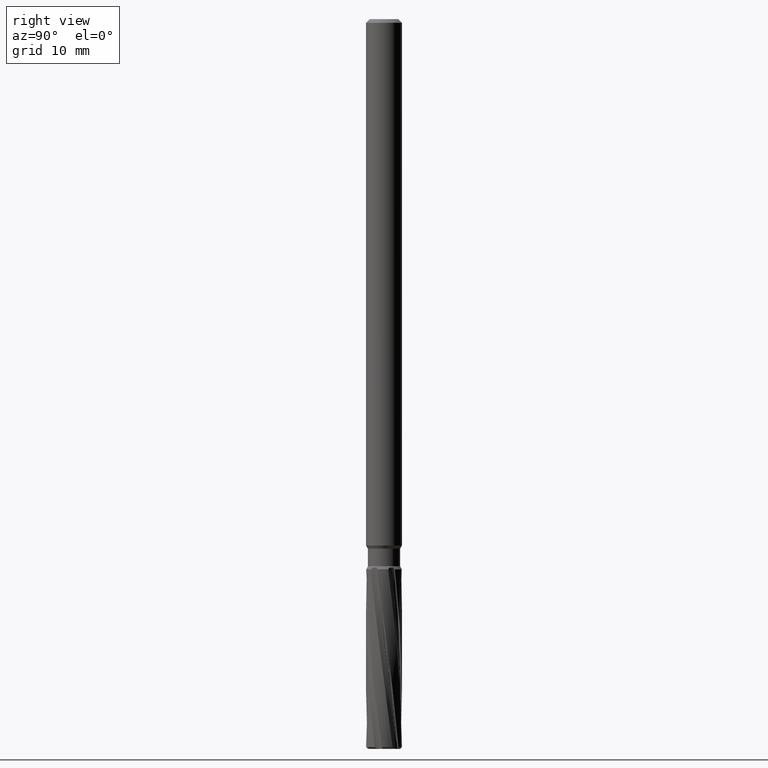
[diagram: clean part render]
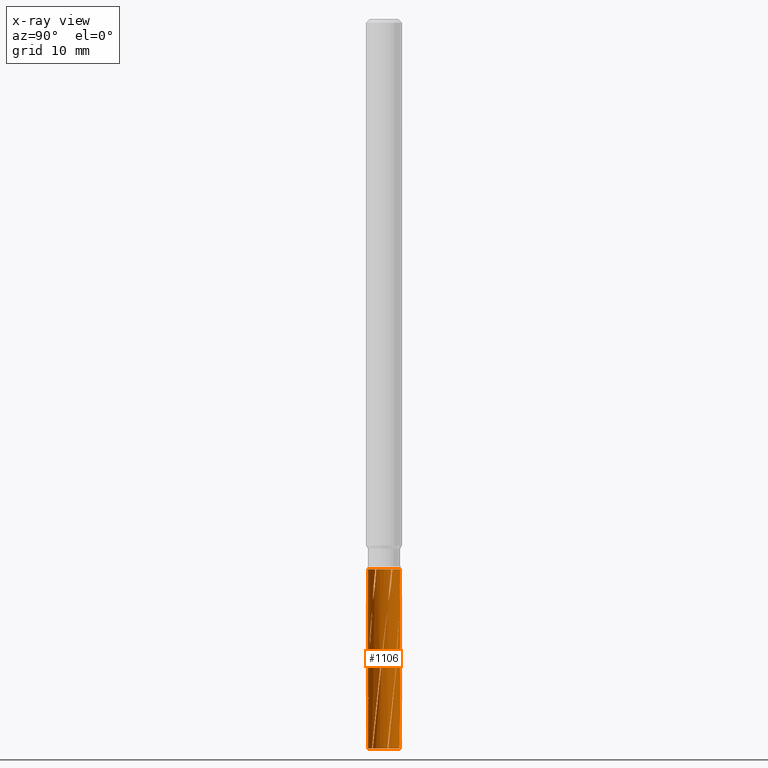
[diagram: x-ray — body ghosted, one internal face saturated and labeled with its STEP entity id]
A machine part, right view, then the same camera in x-ray: the body is ghosted and one INTERNAL B-rep face — a face not visible from any outside direction — is saturated and labeled: STEP entity #1106.
In plain terms, the highlighted cylindrical surface (edge-blend (fillet) strip) has radius 1.35 mm, axis along (-0, -0, 1).
Its self-contained STEP definition (entity closure, byte-faithful):
#672=EDGE_CURVE('',#1568,#1848,#1924,.T.);
#706=VERTEX_POINT('',#1961);
#714=EDGE_CURVE('',#1836,#836,#1970,.T.);
#740=EDGE_CURVE('',#706,#1204,#1997,.T.);
#826=EDGE_CURVE('',#1206,#1834,#2092,.T.);
#834=EDGE_CURVE('',#1054,#1834,#2100,.T.);
#836=VERTEX_POINT('',#2102);
#888=EDGE_CURVE('',#1832,#1766,#2157,.T.);
#892=EDGE_CURVE('',#1794,#1688,#2161,.T.);
#920=EDGE_CURVE('',#1836,#1698,#2192,.T.);
#994=EDGE_CURVE('',#1020,#1708,#2271,.T.);
#1012=EDGE_CURVE('',#1204,#1020,#2291,.T.);
#1020=VERTEX_POINT('',#2299);
#1054=VERTEX_POINT('',#2334);
#1078=EDGE_CURVE('',#1794,#1780,#2361,.T.);
#1102=EDGE_CURVE('',#1832,#1568,#2386,.T.);
#1106=ADVANCED_FACE('',(#2390),#2391,.F.);
#1144=EDGE_CURVE('',#1334,#1848,#2433,.T.);
#1170=EDGE_CURVE('',#1334,#1206,#2462,.T.);
#1190=VERTEX_POINT('',#2482);
#1204=VERTEX_POINT('',#2496);
#1206=VERTEX_POINT('',#2498);
#1228=EDGE_CURVE('',#1552,#1190,#2521,.T.);
#1334=VERTEX_POINT('',#2641);
#1526=EDGE_CURVE('',#1190,#706,#2849,.T.);
#1552=VERTEX_POINT('',#2879);
#1568=VERTEX_POINT('',#2896);
#1636=EDGE_CURVE('',#1688,#1766,#2974,.T.);
#1678=EDGE_CURVE('',#1708,#1780,#3021,.T.);
#1688=VERTEX_POINT('',#3031);
#1698=VERTEX_POINT('',#3041);
#1708=VERTEX_POINT('',#3051);
#1766=VERTEX_POINT('',#3117);
#1780=VERTEX_POINT('',#3132);
#1794=VERTEX_POINT('',#3147);
#1832=VERTEX_POINT('',#3188);
#1834=VERTEX_POINT('',#3190);
#1836=VERTEX_POINT('',#3192);
#1848=VERTEX_POINT('',#3205);
#1862=EDGE_CURVE('',#1054,#836,#3220,.T.);
#1876=EDGE_CURVE('',#1552,#1698,#3234,.T.);
#1924=B_SPLINE_CURVE_WITH_KNOTS('',3,(#3304,#3305,#3306,#3307,#3308,#3309,#3310,#3311,#3312,#3313,#3314,#3315,#3316,#3317,#3318,#3319,#3320,#3321),.UNSPECIFIED.,.F.,.F.,(4,2,2,2,2,2,2,2,4),(0.0,0.834578865675955,0.935179833754773,0.962961800516799,0.978747091812241,0.992325359303053,1.00881325948556,1.03980165788969,1.08131166507733),.UNSPECIFIED.);
#1961=CARTESIAN_POINT('',(-0.958738322833015,-0.950431916725937,-61.0));
#1970=LINE('',#3588,#3589);
#1997=CIRCLE('',#3752,1.35);
#2092=B_SPLINE_CURVE_WITH_KNOTS('',3,(#4332,#4333,#4334,#4335,#4336,#4337,#4338,#4339,#4340,#4341,#4342,#4343,#4344,#4345,#4346,#4347,#4348,#4349),.UNSPECIFIED.,.F.,.F.,(4,2,2,2,2,2,2,2,4),(0.0,0.834578865950554,0.935179834079599,0.962961800849873,0.978747092159533,0.992325359664475,1.00881325987676,1.03980165833892,1.08131166562261),.UNSPECIFIED.);
#2100=CIRCLE('',#4365,1.35);
#2102=CARTESIAN_POINT('',(1.86143655438837E-010,-1.35,-46.5735832636509));
#2157=CIRCLE('',#4524,1.35);
#2161=B_SPLINE_CURVE_WITH_KNOTS('',3,(#4567,#4568,#4569,#4570,#4571,#4572,#4573,#4574,#4575,#4576,#4577,#4578,#4579,#4580,#4581,#4582,#4583,#4584,#4585,#4586,#4587,#4588,#4589,#4590,#4591,#4592,#4593,#4594,#4595,#4596,#4597,#4598,#4599,#4600,#4601,#4602,#4603,#4604,#4605,#4606),.UNSPECIFIED.,.F.,.F.,(4,2,2,2,2,2,2,2,2,2,2,2,2,2,2,2,2,2,2,4),(0.0,0.323517825069557,0.714114294547743,0.93253314688836,1.34143353916023,1.35997992306742,1.43219146120673,1.45063890333908,1.45501885220124,1.45704119986454,1.45833488852724,1.45946108053884,1.46078071352383,1.46303483508478,1.46825415024724,1.4910738230031,1.61375607418788,2.00801004470927,2.11817032010877,2.48306991350954),.UNSPECIFIED.);
#2192=B_SPLINE_CURVE_WITH_KNOTS('',3,(#4788,#4789,#4790,#4791,#4792,#4793,#4794,#4795,#4796,#4797,#4798,#4799,#4800,#4801,#4802,#4803,#4804,#4805,#4806,#4807,#4808,#4809,#4810,#4811,#4812,#4813,#4814,#4815,#4816,#4817,#4818,#4819,#4820,#4821,#4822,#4823,#4824,#4825,#4826,#4827,#4828,#4829,#4830,#4831,#4832,#4833),.UNSPECIFIED.,.F.,.F.,(4,2,2,2,2,2,2,2,2,2,2,2,2,2,2,2,2,2,2,2,2,2,4),(0.0,1.04966106384072,3.08457275560982,5.01477679070213,6.50881800628677,6.64773222575453,11.5421559594186,12.6472074257437,12.7559908833773,12.7886916534019,12.7967080716728,12.8008125924893,12.8034670035113,12.8058113729963,12.8086317739932,12.8135446849834,12.8251303779902,12.8784127321584,13.1961815299918,14.5973845631361,33.1587516844158,40.6331125874662,48.1868505882641),.UNSPECIFIED.);
#2271=CIRCLE('',#5178,1.35);
#2291=B_SPLINE_CURVE_WITH_KNOTS('',3,(#5371,#5372,#5373,#5374,#5375,#5376,#5377,#5378,#5379,#5380,#5381,#5382,#5383,#5384,#5385,#5386,#5387,#5388,#5389,#5390,#5391,#5392,#5393,#5394,#5395,#5396,#5397,#5398,#5399,#5400,#5401,#5402,#5403,#5404,#5405,#5406,#5407,#5408,#5409,#5410,#5411,#5412,#5413,#5414,#5415,#5416),.UNSPECIFIED.,.F.,.F.,(4,2,2,2,2,2,2,2,2,2,2,2,2,2,2,2,2,2,2,2,2,2,4),(0.0,1.04966106408701,3.08457269101621,5.01477673612132,6.50881797542734,6.64773222417174,11.5421559392894,12.6472074607877,12.7559909235401,12.7886916914144,12.7967081037651,12.8008126195237,12.8034670275193,12.8058113943883,12.8086317921253,12.8135446974128,12.8251303768231,12.8784126697748,13.1961810965382,14.5973824696423,33.1587278407661,40.6330807549472,48.1868108727049),.UNSPECIFIED.);
#2299=CARTESIAN_POINT('',(-1.30246734586871,0.355075784792106,-61.0));
#2334=CARTESIAN_POINT('',(-0.0278446036001326,-1.34971281317558,-46.0));
#2361=LINE('',#5802,#5803);
#2386=B_SPLINE_CURVE_WITH_KNOTS('',3,(#5834,#5835,#5836,#5837,#5838,#5839,#5840,#5841,#5842,#5843,#5844,#5845,#5846,#5847,#5848,#5849,#5850,#5851,#5852,#5853,#5854,#5855,#5856,#5857,#5858,#5859,#5860,#5861,#5862,#5863,#5864,#5865,#5866,#5867,#5868,#5869,#5870,#5871,#5872,#5873),.UNSPECIFIED.,.F.,.F.,(4,2,2,2,2,2,2,2,2,2,2,2,2,2,2,2,2,2,2,4),(0.0,0.3235178249628,0.714114294207325,0.932533146630458,1.34143353899069,1.35997992911269,1.43219146516411,1.45063890749646,1.45501885602765,1.45704120340236,1.45833489181692,1.4594610836014,1.46078071633884,1.46303483748235,1.46825415212167,1.49107382416734,1.6137560791984,2.00801009474341,2.11817037707543,2.48306992854809),.UNSPECIFIED.);
#2390=FACE_OUTER_BOUND('',#5877,.T.);
#2391=CYLINDRICAL_SURFACE('',#5878,1.35);
#2433=CIRCLE('',#6023,1.35);
#2462=B_SPLINE_CURVE_WITH_KNOTS('',3,(#6093,#6094,#6095,#6096,#6097,#6098,#6099,#6100,#6101,#6102,#6103,#6104,#6105,#6106,#6107,#6108,#6109,#6110,#6111,#6112,#6113,#6114,#6115,#6116,#6117,#6118,#6119,#6120,#6121,#6122,#6123,#6124,#6125,#6126,#6127,#6128,#6129,#6130,#6131,#6132),.UNSPECIFIED.,.F.,.F.,(4,2,2,2,2,2,2,2,2,2,2,2,2,2,2,2,2,2,2,4),(0.0,0.323517824534681,0.714114292820448,0.932533144839879,1.34143353438823,1.35997991094509,1.43219145144541,1.45063889372096,1.45501884236953,1.45704118990939,1.45833487843854,1.45946107029362,1.46078070304039,1.46303482415659,1.46825413808436,1.49107380482617,1.61375601509119,2.00800981718183,2.11817005377756,2.48306959267257),.UNSPECIFIED.);
#2482=CARTESIAN_POINT('',(-0.906220803277491,-1.00063172831322,-61.0));
#2496=CARTESIAN_POINT('',(-1.31968289819072,0.284494372919639,-61.0));
#2498=CARTESIAN_POINT('',(-1.05029156583906,-0.848167216253577,-47.1500619122359));
#2521=CIRCLE('',#6504,1.35);
#2641=CARTESIAN_POINT('',(-1.18280788582348,-0.650742272511774,-46.0));
#2849=B_SPLINE_CURVE_WITH_KNOTS('',3,(#8691,#8692,#8693,#8694,#8695,#8696,#8697,#8698,#8699,#8700,#8701,#8702,#8703,#8704,#8705,#8706,#8707,#8708,#8709,#8710,#8711,#8712,#8713,#8714,#8715,#8716,#8717,#8718,#8719,#8720,#8721,#8722,#8723,#8724,#8725,#8726,#8727,#8728,#8729,#8730,#8731,#8732,#8733,#8734,#8735,#8736),.UNSPECIFIED.,.F.,.F.,(4,2,2,2,2,2,2,2,2,2,2,2,2,2,2,2,2,2,2,2,2,2,4),(0.0,1.04966106435016,3.08457279774909,5.01477682778144,6.50881802992777,6.64773223130369,11.5421559806622,12.6472074175933,12.7559908725624,12.7886916422196,12.7967080597435,12.8008125798994,12.8034669908344,12.8058113602213,12.8086317606906,12.8135446707527,12.8251303622079,12.8784127096137,13.1961814705993,14.5973843561115,33.1587492357484,40.6331089501786,48.1868456787993),.UNSPECIFIED.);
#2879=CARTESIAN_POINT('',(1.65321857764941E-016,-1.35,-61.0));
#2896=CARTESIAN_POINT('',(-1.25968013885225,0.48549556927038,-47.1500619122358));
#2974=B_SPLINE_CURVE_WITH_KNOTS('',3,(#9930,#9931,#9932,#9933,#9934,#9935,#9936,#9937,#9938,#9939,#9940,#9941,#9942,#9943,#9944,#9945,#9946,#9947),.UNSPECIFIED.,.F.,.F.,(4,2,2,2,2,2,2,2,4),(0.0,0.8345788660789,0.9351798342066,0.962961800993425,0.978747092294254,0.992325359794017,1.00881325999302,1.03980165841759,1.0813116656877),.UNSPECIFIED.);
#3021=B_SPLINE_CURVE_WITH_KNOTS('',3,(#10081,#10082,#10083,#10084,#10085,#10086,#10087,#10088,#10089,#10090,#10091,#10092,#10093,#10094,#10095,#10096,#10097,#10098,#10099,#10100,#10101,#10102,#10103,#10104,#10105,#10106,#10107,#10108,#10109,#10110,#10111,#10112,#10113,#10114,#10115,#10116,#10117,#10118,#10119,#10120,#10121,#10122,#10123,#10124,#10125,#10126),.UNSPECIFIED.,.F.,.F.,(4,2,2,2,2,2,2,2,2,2,2,2,2,2,2,2,2,2,2,2,2,2,4),(0.0,1.04966106387353,3.08457276091617,5.01477679520291,6.5088180084936,6.64773222582386,11.5421559611217,12.6472074239101,12.7559908812541,12.7886916434557,12.7967080585878,12.8008125780306,12.803466988371,12.8058113573263,12.8086317576893,12.8135446674216,12.8251303558002,12.878412678682,13.1961812897944,14.5973835018847,33.1587395923677,40.6330961561883,48.1868297981657),.UNSPECIFIED.);
#3031=CARTESIAN_POINT('',(-0.2093885730132,1.33366278552395,-47.1500619122359));
#3041=CARTESIAN_POINT('',(-1.94414490569165E-011,-1.35,-58.0145726670177));
#3051=CARTESIAN_POINT('',(-0.41346209491323,1.28512610123286,-61.0));
#3117=CARTESIAN_POINT('',(-0.0656264641170934,1.34840393325127,-46.0));
#3132=CARTESIAN_POINT('',(9.4697429323836E-011,1.35,-57.5592027033672));
#3147=CARTESIAN_POINT('',(-1.86132705864257E-010,1.35,-46.5735832636507));
#3188=CARTESIAN_POINT('',(-1.15496328222335,0.698970540663809,-46.0));
#3190=CARTESIAN_POINT('',(-1.13493882869991,-0.731036151711583,-46.0));
#3192=CARTESIAN_POINT('',(-9.47359818183661E-011,-1.35,-57.5592027033666));
#3205=CARTESIAN_POINT('',(-1.200565292817,0.617367781539684,-46.0));
#3220=B_SPLINE_CURVE_WITH_KNOTS('',3,(#11830,#11831,#11832,#11833,#11834,#11835,#11836,#11837,#11838,#11839,#11840,#11841,#11842,#11843,#11844,#11845,#11846,#11847,#11848,#11849,#11850,#11851,#11852,#11853,#11854,#11855,#11856,#11857,#11858,#11859,#11860,#11861,#11862,#11863,#11864,#11865,#11866,#11867,#11868,#11869),.UNSPECIFIED.,.F.,.F.,(4,2,2,2,2,2,2,2,2,2,2,2,2,2,2,2,2,2,2,4),(0.0,0.323517825718107,0.714114296597656,0.932533150370524,1.34143354225563,1.35997992476992,1.43219146349024,1.45063890559473,1.45501885418716,1.45704120165925,1.45833489013685,1.45946108196951,1.46078071474312,1.46303483590326,1.4682541504145,1.49107382188774,1.61375606460036,2.00801000080351,2.11817026713574,2.48306984426335),.UNSPECIFIED.);
#3234=LINE('',#11945,#11946);
#3304=CARTESIAN_POINT('',(-1.2596801398772,0.48549556661103,-47.1500619333063));
#3305=CARTESIAN_POINT('',(-1.25038940413496,0.50960156490271,-46.873071133075));
#3306=CARTESIAN_POINT('',(-1.23634402905019,0.543633553604912,-46.510615843948));
#3307=CARTESIAN_POINT('',(-1.217197778212,0.583911452556587,-46.2073323997099));
#3308=CARTESIAN_POINT('',(-1.21496843360978,0.588541307790865,-46.1740467396177));
#3309=CARTESIAN_POINT('',(-1.21193908704898,0.594731766077961,-46.1325131858026));
#3310=CARTESIAN_POINT('',(-1.21126727017691,0.596098995062552,-46.1235095142409));
#3311=CARTESIAN_POINT('',(-1.21018942003291,0.598282831296702,-46.109431041884));
#3312=CARTESIAN_POINT('',(-1.20979305098218,0.599083961062712,-46.1043276303303));
#3313=CARTESIAN_POINT('',(-1.20904516564485,0.600591702517641,-46.0948462502163));
#3314=CARTESIAN_POINT('',(-1.20869463196219,0.601296865804648,-46.0904603453033));
#3315=CARTESIAN_POINT('',(-1.20790830519981,0.60287516227926,-46.0807592535926));
#3316=CARTESIAN_POINT('',(-1.20746947196576,0.603753647483483,-46.0754356426745));
#3317=CARTESIAN_POINT('',(-1.2061845986922,0.606318579663125,-46.0601325010245));
#3318=CARTESIAN_POINT('',(-1.20531379185424,0.60804822294794,-46.0501036741494));
#3319=CARTESIAN_POINT('',(-1.20320589429356,0.612211331436122,-46.0267890573061));
#3320=CARTESIAN_POINT('',(-1.20192102186989,0.614731360760974,-46.0132903280272));
#3321=CARTESIAN_POINT('',(-1.200565292817,0.617367781539689,-46.0));
#3588=CARTESIAN_POINT('',(1.65321857764941E-016,-1.35,-53.5));
#3589=VECTOR('',#12033,1.0);
#3752=AXIS2_PLACEMENT_3D('',#12052,#12053,#12054);
#4332=CARTESIAN_POINT('',(-1.05029156404847,-0.848167218470875,-47.1500619333063));
#4333=CARTESIAN_POINT('',(-1.06652260308687,-0.828068206145797,-46.8730711329839));
#4334=CARTESIAN_POINT('',(-1.08897248229826,-0.798888560169664,-46.5106158439302));
#4335=CARTESIAN_POINT('',(-1.1142810405799,-0.762168471084414,-46.2073323997188));
#4336=CARTESIAN_POINT('',(-1.11717594052776,-0.757922874407605,-46.1740467396239));
#4337=CARTESIAN_POINT('',(-1.12102236138427,-0.75220415418672,-46.1325131858167));
#4338=CARTESIAN_POINT('',(-1.12187050798215,-0.750938729215828,-46.1235095142498));
#4339=CARTESIAN_POINT('',(-1.12322284056754,-0.748913365491217,-46.1094310418833));
#4340=CARTESIAN_POINT('',(-1.12371845477099,-0.748169534941412,-46.1043276303325));
#4341=CARTESIAN_POINT('',(-1.12465025450445,-0.746767976512986,-46.0948462502203));
#4342=CARTESIAN_POINT('',(-1.12508567698341,-0.746111823795527,-46.090460345308));
#4343=CARTESIAN_POINT('',(-1.12605935844461,-0.744641696605318,-46.0807592535907));
#4344=CARTESIAN_POINT('',(-1.12660073233082,-0.743822413275194,-46.0754356426772));
#4345=CARTESIAN_POINT('',(-1.1281795921199,-0.74142721429089,-46.0601325010338));
#4346=CARTESIAN_POINT('',(-1.12924210372488,-0.739808251805284,-46.0501036741601));
#4347=CARTESIAN_POINT('',(-1.13179351265407,-0.735901204725009,-46.0267890573156));
#4348=CARTESIAN_POINT('',(-1.1333334858564,-0.733528457902189,-46.0132903280315));
#4349=CARTESIAN_POINT('',(-1.13493882869991,-0.731036151711583,-46.0));
#4365=AXIS2_PLACEMENT_3D('',#12142,#12143,#12144);
#4524=AXIS2_PLACEMENT_3D('',#12189,#12190,#12191);
#4567=CARTESIAN_POINT('',(0.0278446036001209,1.34971281317559,-46.0));
#4568=CARTESIAN_POINT('',(0.0307957937240842,1.34965193006153,-46.107798868304));
#4569=CARTESIAN_POINT('',(0.0250027587933239,1.34987527711553,-46.2708882980667));
#4570=CARTESIAN_POINT('',(-0.0124825218331849,1.35009798982436,-46.7333749050955));
#4571=CARTESIAN_POINT('',(-0.0447160687653821,1.34975529572169,-47.000868599114));
#4572=CARTESIAN_POINT('',(-0.101664761286366,1.34632200516209,-47.4006573438445));
#4573=CARTESIAN_POINT('',(-0.123808049267517,1.3445223901229,-47.5432181894941));
#4574=CARTESIAN_POINT('',(-0.1919013627771,1.33703690153543,-47.9552694613171));
#4575=CARTESIAN_POINT('',(-0.263048678027961,1.32438850420275,-48.3644858660412));
#4576=CARTESIAN_POINT('',(-0.290056242396769,1.31847215189253,-48.5052319776133));
#4577=CARTESIAN_POINT('',(-0.291265545670604,1.31820557073908,-48.5114455140851));
#4578=CARTESIAN_POINT('',(-0.297203340914262,1.31688784390064,-48.5413039702357));
#4579=CARTESIAN_POINT('',(-0.301746764059734,1.31585006385217,-48.5622108057925));
#4580=CARTESIAN_POINT('',(-0.306070615706729,1.31484660473528,-48.5755654395838));
#4581=CARTESIAN_POINT('',(-0.30697296759183,1.31463620215725,-48.5779064342999));
#4582=CARTESIAN_POINT('',(-0.308014193249211,1.3143923686856,-48.5795363499794));
#4583=CARTESIAN_POINT('',(-0.30824120800234,1.31433915662562,-48.5798395660113));
#4584=CARTESIAN_POINT('',(-0.308592532959724,1.31425669547301,-48.5801515928547));
#4585=CARTESIAN_POINT('',(-0.308719846104805,1.31422679791899,-48.5802429470574));
#4586=CARTESIAN_POINT('',(-0.308944153753957,1.31417408205386,-48.5803334028907));
#4587=CARTESIAN_POINT('',(-0.309035605955597,1.31415258002216,-48.5803539432027));
#4588=CARTESIAN_POINT('',(-0.309211457146858,1.31411121364878,-48.5803511158078));
#4589=CARTESIAN_POINT('',(-0.309289951386748,1.31409274100367,-48.5803331772633));
#4590=CARTESIAN_POINT('',(-0.309453526427605,1.31405423145408,-48.5802617188022));
#4591=CARTESIAN_POINT('',(-0.30953299455227,1.31403551344408,-48.5802045395865));
#4592=CARTESIAN_POINT('',(-0.309725053739311,1.31399026121801,-48.5800250901341));
#4593=CARTESIAN_POINT('',(-0.309827483495022,1.31396610987352,-48.5798794531737));
#4594=CARTESIAN_POINT('',(-0.310105541403085,1.31390052629527,-48.5794017965439));
#4595=CARTESIAN_POINT('',(-0.310261615078243,1.31386367125509,-48.5789715882152));
#4596=CARTESIAN_POINT('',(-0.310931868052476,1.31370532753529,-48.5766711981749));
#4597=CARTESIAN_POINT('',(-0.311214904460571,1.31363819628427,-48.5736674903742));
#4598=CARTESIAN_POINT('',(-0.312243675187172,1.31339433606512,-48.5581908001845));
#4599=CARTESIAN_POINT('',(-0.311443261742401,1.31358468164677,-48.5324416324653));
#4600=CARTESIAN_POINT('',(-0.306221864306136,1.31481744432873,-48.4185383921995));
#4601=CARTESIAN_POINT('',(-0.293892729029805,1.3176804720287,-48.2444615478486));
#4602=CARTESIAN_POINT('',(-0.278326788960992,1.32100199895358,-48.0247054852056));
#4603=CARTESIAN_POINT('',(-0.270574859445658,1.32261806818388,-47.91491587165));
#4604=CARTESIAN_POINT('',(-0.247683448270002,1.32720552073027,-47.5972971996024));
#4605=CARTESIAN_POINT('',(-0.230592549701502,1.3303337052878,-47.3801793851846));
#4606=CARTESIAN_POINT('',(-0.209388573013207,1.33366278552395,-47.1500619122359));
#4788=CARTESIAN_POINT('',(0.413462094913233,-1.28512610123286,-61.0));
#4789=CARTESIAN_POINT('',(0.374206551815722,-1.29775574051143,-60.6525515546039));
#4790=CARTESIAN_POINT('',(0.333744752237203,-1.30879477561374,-60.307466481556));
#4791=CARTESIAN_POINT('',(0.211032504987349,-1.33597921219116,-59.2870097525147));
#4792=CARTESIAN_POINT('',(0.132762189974412,-1.3461453887252,-58.6708775114907));
#4793=CARTESIAN_POINT('',(-0.0328543497446664,-1.35200908696524,-57.2866777186565));
#4794=CARTESIAN_POINT('',(-0.11429663695047,-1.34779149918369,-56.5912277276138));
#4795=CARTESIAN_POINT('',(-0.262226775428642,-1.32589377448326,-55.3438838684594));
#4796=CARTESIAN_POINT('',(-0.324798524569313,-1.31189850623897,-54.8196753244264));
#4797=CARTESIAN_POINT('',(-0.391631151960452,-1.29195984517657,-54.2386062281591));
#4798=CARTESIAN_POINT('',(-0.397261882811713,-1.29023952153516,-54.1894496941078));
#4799=CARTESIAN_POINT('',(-0.601929516326697,-1.22623917361121,-52.3951713074556));
#4800=CARTESIAN_POINT('',(-0.747574091336361,-1.13069012757383,-50.8733716366344));
#4801=CARTESIAN_POINT('',(-0.864182019412988,-1.03751880043995,-49.8093150234155));
#4802=CARTESIAN_POINT('',(-0.884124310049384,-1.02028667562786,-49.6366053650622));
#4803=CARTESIAN_POINT('',(-0.894561453453666,-1.0110694156547,-49.5723722124656));
#4804=CARTESIAN_POINT('',(-0.895895023046304,-1.00988841006638,-49.5646297324154));
#4805=CARTESIAN_POINT('',(-0.897429653030045,-1.00852379404091,-49.5587444979905));
#4806=CARTESIAN_POINT('',(-0.897796866621103,-1.00819690763294,-49.5575714252293));
#4807=CARTESIAN_POINT('',(-0.898231176565628,-1.00780988612088,-49.5567298420381));
#4808=CARTESIAN_POINT('',(-0.89832732448438,-1.00772418682134,-49.5565711678689));
#4809=CARTESIAN_POINT('',(-0.898481322230804,-1.00758687887635,-49.5563985228628));
#4810=CARTESIAN_POINT('',(-0.898540889032936,-1.00753376026802,-49.556345114295));
#4811=CARTESIAN_POINT('',(-0.898646201723802,-1.00743982807848,-49.5562934996051));
#4812=CARTESIAN_POINT('',(-0.898689163856321,-1.00740150399166,-49.5562825511815));
#4813=CARTESIAN_POINT('',(-0.898772030026316,-1.00732757370922,-49.5562870717603));
#4814=CARTESIAN_POINT('',(-0.898809153630788,-1.00729444930963,-49.5562994637359));
#4815=CARTESIAN_POINT('',(-0.898887304652427,-1.00722471018456,-49.5563465337391));
#4816=CARTESIAN_POINT('',(-0.898925621561442,-1.00719051275522,-49.5563840460126));
#4817=CARTESIAN_POINT('',(-0.899018999149187,-1.00710716683553,-49.5565018255963));
#4818=CARTESIAN_POINT('',(-0.89906899574411,-1.00706253225566,-49.5565977963305));
#4819=CARTESIAN_POINT('',(-0.899205779122776,-1.00694040706135,-49.5569143743389));
#4820=CARTESIAN_POINT('',(-0.899282477569209,-1.0068719045647,-49.5572013827592));
#4821=CARTESIAN_POINT('',(-0.899623370603898,-1.00656740063794,-49.5587912960014));
#4822=CARTESIAN_POINT('',(-0.899758471788781,-1.0064465718693,-49.5609290195358));
#4823=CARTESIAN_POINT('',(-0.900266670035913,-1.00599217873338,-49.5726826513185));
#4824=CARTESIAN_POINT('',(-0.899576365283587,-1.00660992271591,-49.5931500744964));
#4825=CARTESIAN_POINT('',(-0.895203811879336,-1.01051123307112,-49.6939267942502));
#4826=CARTESIAN_POINT('',(-0.884708647688656,-1.01973382336036,-49.8452330375025));
#4827=CARTESIAN_POINT('',(-0.796520935604058,-1.09531586839196,-51.0679072695783));
#4828=CARTESIAN_POINT('',(-0.60518077216745,-1.24179992788442,-52.8386289385393));
#4829=CARTESIAN_POINT('',(-0.206042727910827,-1.33938828596698,-56.313696831644));
#4830=CARTESIAN_POINT('',(-0.0932038321195841,-1.35129113885697,-57.2309683923783));
#4831=CARTESIAN_POINT('',(0.128628118540122,-1.34847672024242,-59.0950765309223));
#4832=CARTESIAN_POINT('',(0.234439850346662,-1.33428260687716,-60.0560132329913));
#4833=CARTESIAN_POINT('',(0.343729023035688,-1.30550770151805,-61.0));
#5178=AXIS2_PLACEMENT_3D('',#12276,#12277,#12278);
#5371=CARTESIAN_POINT('',(-1.31968289819072,0.284494372919637,-61.0));
#5372=CARTESIAN_POINT('',(-1.31099271509581,0.324805490130183,-60.6525515545224));
#5373=CARTESIAN_POINT('',(-1.30032190013887,0.365365953994766,-60.307466481513));
#5374=CARTESIAN_POINT('',(-1.26250818998247,0.485230093205742,-59.2870097741946));
#5375=CARTESIAN_POINT('',(-1.23217720072675,0.558097260474022,-58.6708775520517));
#5376=CARTESIAN_POINT('',(-1.15444704485621,0.704457237991597,-57.2866777885761));
#5377=CARTESIAN_POINT('',(-1.11007336353853,0.772879533974031,-56.5912277971422));
#5378=CARTESIAN_POINT('',(-1.01714430882124,0.890041930517294,-55.3438839322742));
#5379=CARTESIAN_POINT('',(-0.973738176217441,0.937233021458481,-54.8196753823317));
#5380=CARTESIAN_POINT('',(-0.92305447427705,0.985142445672826,-54.2386062700289));
#5381=CARTESIAN_POINT('',(-0.918749264003376,0.9891586406511,-54.1894497259332));
#5382=CARTESIAN_POINT('',(-0.76098951927424,1.13440583794562,-52.3951713278707));
#5383=CARTESIAN_POINT('',(-0.60541933052611,1.2127632170561,-50.8733716570361));
#5384=CARTESIAN_POINT('',(-0.466426630022798,1.26716298194789,-49.8093150346936));
#5385=CARTESIAN_POINT('',(-0.441532025802874,1.27581745021972,-49.6366053684843));
#5386=CARTESIAN_POINT('',(-0.428331072375069,1.28024765171258,-49.5723722131685));
#5387=CARTESIAN_POINT('',(-0.426641506671009,1.28081205408569,-49.5646297327311));
#5388=CARTESIAN_POINT('',(-0.424692399521208,1.28145877462881,-49.5587444982051));
#5389=CARTESIAN_POINT('',(-0.424225700774162,1.28161334772934,-49.5575714253293));
#5390=CARTESIAN_POINT('',(-0.423673375364661,1.28179596041045,-49.5567298421589));
#5391=CARTESIAN_POINT('',(-0.423551083613821,1.28183637730779,-49.5565711679242));
#5392=CARTESIAN_POINT('',(-0.423355172520355,1.28190108931292,-49.5563985228706));
#5393=CARTESIAN_POINT('',(-0.423279387051485,1.28192611637381,-49.5563451142972));
#5394=CARTESIAN_POINT('',(-0.423145383035424,1.2819703537474,-49.556293499603));
#5395=CARTESIAN_POINT('',(-0.423090712339865,1.281988398001,-49.5562825511827));
#5396=CARTESIAN_POINT('',(-0.422985253755082,1.28202319706715,-49.5562870717605));
#5397=CARTESIAN_POINT('',(-0.422938005381962,1.2820387848517,-49.5562994637346));
#5398=CARTESIAN_POINT('',(-0.422838534015574,1.28207159605977,-49.5563465337378));
#5399=CARTESIAN_POINT('',(-0.42278975971851,1.2820876807617,-49.556384046011));
#5400=CARTESIAN_POINT('',(-0.422670891242153,1.28212687516457,-49.5565018255922));
#5401=CARTESIAN_POINT('',(-0.422607238265622,1.28214785619562,-49.5565977963229));
#5402=CARTESIAN_POINT('',(-0.422433083054505,1.28220525147955,-49.5569143743299));
#5403=CARTESIAN_POINT('',(-0.422335408929676,1.28223742303404,-49.557201382747));
#5404=CARTESIAN_POINT('',(-0.421901254279626,1.28238039309755,-49.558791295954));
#5405=CARTESIAN_POINT('',(-0.42172906290325,1.28243697977167,-49.5609290194541));
#5406=CARTESIAN_POINT('',(-0.421081447785249,1.28264989579439,-49.5726826508365));
#5407=CARTESIAN_POINT('',(-0.421961582070214,1.28236094635779,-49.5931500730435));
#5408=CARTESIAN_POINT('',(-0.427526492300341,1.28052485932315,-49.6939267883373));
#5409=CARTESIAN_POINT('',(-0.440761071227607,1.27604707588738,-49.8452330251303));
#5410=CARTESIAN_POINT('',(-0.550310891640748,1.23746530195124,-51.0679071907615));
#5411=CARTESIAN_POINT('',(-0.772839872613827,1.14500189951326,-52.8386287047306));
#5412=CARTESIAN_POINT('',(-1.05692289434918,0.848132408924255,-56.3136965215188));
#5413=CARTESIAN_POINT('',(-1.12365052221822,0.756362480506084,-57.2309681524844));
#5414=CARTESIAN_POINT('',(-1.2321291516716,0.562843152133825,-59.095076433292));
#5415=CARTESIAN_POINT('',(-1.27274255694999,0.464110443272507,-60.0560131819667));
#5416=CARTESIAN_POINT('',(-1.3024673458687,0.355075784792111,-61.0));
#5802=CARTESIAN_POINT('',(-1.653218577671E-016,1.35,-53.5));
#5803=VECTOR('',#12339,1.0);
#5834=CARTESIAN_POINT('',(-1.15496328222336,0.698970540663804,-46.0));
#5835=CARTESIAN_POINT('',(-1.15343496083844,0.701495904724691,-46.1077988682684));
#5836=CARTESIAN_POINT('',(-1.15652490252388,0.696590662841004,-46.2708882980162));
#5837=CARTESIAN_POINT('',(-1.17546041770252,0.664238813901794,-46.7333749050889));
#5838=CARTESIAN_POINT('',(-1.19128040936714,0.636152396358892,-47.0008685990652));
#5839=CARTESIAN_POINT('',(-1.21678143879826,0.585116736615959,-47.4006573440122));
#5840=CARTESIAN_POINT('',(-1.22629457048135,0.565040279103862,-47.543218190155));
#5841=CARTESIAN_POINT('',(-1.25385860387235,0.502326995676969,-47.9552694606719));
#5842=CARTESIAN_POINT('',(-1.27847842792827,0.434387415097104,-48.364485862029));
#5843=CARTESIAN_POINT('',(-1.28685849882609,0.408040001800647,-48.5052319760675));
#5844=CARTESIAN_POINT('',(-1.28723228454045,0.406859423462388,-48.5114455146868));
#5845=CARTESIAN_POINT('',(-1.28905999733659,0.401058278220765,-48.5413039721824));
#5846=CARTESIAN_POINT('',(-1.29043296495632,0.396604668547011,-48.5622108064749));
#5847=CARTESIAN_POINT('',(-1.29172586964992,0.392358373760714,-48.5755654397308));
#5848=CARTESIAN_POINT('',(-1.29199483161016,0.391471712831433,-48.5779064343755));
#5849=CARTESIAN_POINT('',(-1.2923042784469,0.390448068262288,-48.5795363499761));
#5850=CARTESIAN_POINT('',(-1.29237170282897,0.390224861684975,-48.5798395660199));
#5851=CARTESIAN_POINT('',(-1.29247595185835,0.389879374758393,-48.5801515928667));
#5852=CARTESIAN_POINT('',(-1.29251371638903,0.389754169565362,-48.5802429470653));
#5853=CARTESIAN_POINT('',(-1.29258021693291,0.389533555518053,-48.5803334028912));
#5854=CARTESIAN_POINT('',(-1.29260732172868,0.389443604570232,-48.5803539432044));
#5855=CARTESIAN_POINT('',(-1.2926594229943,0.389270629783942,-48.5803511158064));
#5856=CARTESIAN_POINT('',(-1.29268267233421,0.38919341545592,-48.5803331772604));
#5857=CARTESIAN_POINT('',(-1.29273110960619,0.389032500541036,-48.5802617187968));
#5858=CARTESIAN_POINT('',(-1.29275463339628,0.388954320121507,-48.5802045395803));
#5859=CARTESIAN_POINT('',(-1.29281147341372,0.38876536586924,-48.5800250901194));
#5860=CARTESIAN_POINT('',(-1.29284177261449,0.388664583423848,-48.5798794531496));
#5861=CARTESIAN_POINT('',(-1.29292400452731,0.388390986410543,-48.579401796487));
#5862=CARTESIAN_POINT('',(-1.29297012396491,0.388237395119317,-48.57897158812));
#5863=CARTESIAN_POINT('',(-1.29316812076718,0.387577767159946,-48.5766711980171));
#5864=CARTESIAN_POINT('',(-1.29325150160187,0.387299084816742,-48.5736674901023));
#5865=CARTESIAN_POINT('',(-1.29355469783135,0.386286213086675,-48.5581907985303));
#5866=CARTESIAN_POINT('',(-1.29331933515001,0.387074564482413,-48.5324416274485));
#5867=CARTESIAN_POINT('',(-1.29177623997832,0.392212809484663,-48.4185383742897));
#5868=CARTESIAN_POINT('',(-1.28809112653556,0.404321669370386,-48.2444615087581));
#5869=CARTESIAN_POINT('',(-1.28318468257305,0.419462934124655,-48.0247054207786));
#5870=CARTESIAN_POINT('',(-1.28070827537641,0.42698433488636,-47.9149158322289));
#5871=CARTESIAN_POINT('',(-1.27323542050126,0.449102603789422,-47.5972971770205));
#5872=CARTESIAN_POINT('',(-1.26739905862238,0.465467848023758,-47.3801793697332));
#5873=CARTESIAN_POINT('',(-1.25968013885225,0.485495569270381,-47.1500619122358));
#5877=EDGE_LOOP('',(#12366,#12367,#12368,#12369,#12370,#12371,#12372,#12373,#12374,#12375,#12376,#12377,#12378,#12379,#12380,#12381,#12382,#12383,#12384,#12385));
#5878=AXIS2_PLACEMENT_3D('',#12386,#12387,#12388);
#6023=AXIS2_PLACEMENT_3D('',#12425,#12426,#12427);
#6093=CARTESIAN_POINT('',(-1.18280788582348,-0.650742272511776,-46.0));
#6094=CARTESIAN_POINT('',(-1.18423075455967,-0.648156025340274,-46.1077988681258));
#6095=CARTESIAN_POINT('',(-1.18152766133203,-0.653284614255635,-46.2708882977483));
#6096=CARTESIAN_POINT('',(-1.16297789586834,-0.685859175925225,-46.7333749051266));
#6097=CARTESIAN_POINT('',(-1.14656434060937,-0.713602899362234,-47.0008685990569));
#6098=CARTESIAN_POINT('',(-1.11511667748077,-0.761205268555634,-47.4006573441041));
#6099=CARTESIAN_POINT('',(-1.10248652110709,-0.779482111007977,-47.5432181901649));
#6100=CARTESIAN_POINT('',(-1.06195724124318,-0.8347099058058,-47.9552694601864));
#6101=CARTESIAN_POINT('',(-1.01542974968613,-0.890001090189856,-48.3644858702237));
#6102=CARTESIAN_POINT('',(-0.996802256270927,-0.910432150663381,-48.5052319794712));
#6103=CARTESIAN_POINT('',(-0.995966738922874,-0.9113461470706,-48.5114455133973));
#6104=CARTESIAN_POINT('',(-0.991856656632978,-0.915829564907154,-48.5413039679743));
#6105=CARTESIAN_POINT('',(-0.98868620099798,-0.919245394939594,-48.562210804999));
#6106=CARTESIAN_POINT('',(-0.98565525395785,-0.922488230888785,-48.5755654394701));
#6107=CARTESIAN_POINT('',(-0.985021864029911,-0.923164489263763,-48.5779064342301));
#6108=CARTESIAN_POINT('',(-0.984290085221905,-0.923944300396816,-48.5795363499295));
#6109=CARTESIAN_POINT('',(-0.98413049484665,-0.924114294913234,-48.579839565978));
#6110=CARTESIAN_POINT('',(-0.98388341890636,-0.924377320684187,-48.580151592841));
#6111=CARTESIAN_POINT('',(-0.983793870291762,-0.924472628325865,-48.5802429470469));
#6112=CARTESIAN_POINT('',(-0.98363606318914,-0.924640526515372,-48.5803334028848));
#6113=CARTESIAN_POINT('',(-0.983571715780469,-0.924708975431673,-48.5803539432011));
#6114=CARTESIAN_POINT('',(-0.983447965853128,-0.924840583845505,-48.5803511158095));
#6115=CARTESIAN_POINT('',(-0.983392720953434,-0.924899325528548,-48.5803331772677));
#6116=CARTESIAN_POINT('',(-0.983277583183649,-0.925021730895753,-48.580261718809));
#6117=CARTESIAN_POINT('',(-0.983221638849526,-0.925081193305103,-48.5802045395957));
#6118=CARTESIAN_POINT('',(-0.983086419680482,-0.925224895325129,-48.5800250901509));
#6119=CARTESIAN_POINT('',(-0.983014289125988,-0.925301526422135,-48.5798794531974));
#6120=CARTESIAN_POINT('',(-0.982818463134312,-0.925509539837483,-48.5794017965986));
#6121=CARTESIAN_POINT('',(-0.982708508898309,-0.925626276082164,-48.5789715883022));
#6122=CARTESIAN_POINT('',(-0.982236252729172,-0.926127560322952,-48.5766711983551));
#6123=CARTESIAN_POINT('',(-0.982036597154796,-0.926339111418715,-48.5736674906816));
#6124=CARTESIAN_POINT('',(-0.981311022676799,-0.927108122861223,-48.5581908020744));
#6125=CARTESIAN_POINT('',(-0.981876073321486,-0.926510117473196,-48.5324416382008));
#6126=CARTESIAN_POINT('',(-0.985554375156154,-0.922604636718164,-48.4185384125971));
#6127=CARTESIAN_POINT('',(-0.994198396149609,-0.913358807693079,-48.2444615925165));
#6128=CARTESIAN_POINT('',(-1.00485789153576,-0.901539073201641,-48.0247055580242));
#6129=CARTESIAN_POINT('',(-1.01013341467509,-0.89563373842269,-47.9149159165922));
#6130=CARTESIAN_POINT('',(-1.02555197149589,-0.878102920292278,-47.597297225794));
#6131=CARTESIAN_POINT('',(-1.03680650840403,-0.864865859890646,-47.3801794028489));
#6132=CARTESIAN_POINT('',(-1.05029156583907,-0.848167216253566,-47.1500619122358));
#6504=AXIS2_PLACEMENT_3D('',#12483,#12484,#12485);
#8691=CARTESIAN_POINT('',(-0.906220803277488,-1.00063172831322,-61.0));
#8692=CARTESIAN_POINT('',(-0.936786163296957,-0.972950250377276,-60.6525515544353));
#8693=CARTESIAN_POINT('',(-0.966577147909344,-0.943428821617434,-60.307466481483));
#8694=CARTESIAN_POINT('',(-1.05147568530114,-0.850749115227757,-59.2870097391803));
#8695=CARTESIAN_POINT('',(-1.09941501076299,-0.788048121065002,-58.670877486453));
#8696=CARTESIAN_POINT('',(-1.18730139276078,-0.647551837523826,-57.2866776753606));
#8697=CARTESIAN_POINT('',(-1.22436999794899,-0.574911953801304,-56.5912276846059));
#8698=CARTESIAN_POINT('',(-1.27937108067074,-0.435851833609775,-55.3438838287568));
#8699=CARTESIAN_POINT('',(-1.29853669706669,-0.374665475514032,-54.8196752884082));
#8700=CARTESIAN_POINT('',(-1.31468562327741,-0.306817393042081,-54.2386062021571));
#8701=CARTESIAN_POINT('',(-1.31601114454496,-0.301080875996,-54.1894496743778));
#8702=CARTESIAN_POINT('',(-1.36291903374777,-0.0918333327269386,-52.3951712931432));
#8703=CARTESIAN_POINT('',(-1.35299341990562,0.0820730919034058,-50.8733716239181));
#8704=CARTESIAN_POINT('',(-1.33060864760346,0.229644183086806,-49.8093150168161));
#8705=CARTESIAN_POINT('',(-1.32565633518926,0.255530775152949,-49.6366053630501));
#8706=CARTESIAN_POINT('',(-1.32289252565429,0.269178236203117,-49.5723722120575));
#8707=CARTESIAN_POINT('',(-1.32253652961718,0.270923644102163,-49.5646297322335));
#8708=CARTESIAN_POINT('',(-1.32212205247128,0.272934980633534,-49.5587444979387));
#8709=CARTESIAN_POINT('',(-1.32202256733432,0.2734164401313,-49.557571425199));
#8710=CARTESIAN_POINT('',(-1.32190455184854,0.273986074316827,-49.5567298420399));
#8711=CARTESIAN_POINT('',(-1.3218784080376,0.27411219050597,-49.5565711678692));
#8712=CARTESIAN_POINT('',(-1.32183649474225,0.274314210439248,-49.556398522864));
#8713=CARTESIAN_POINT('',(-1.32182027607875,0.274392356108924,-49.5563451142941));
#8714=CARTESIAN_POINT('',(-1.32179158476016,0.274530525677277,-49.5562934996018));
#8715=CARTESIAN_POINT('',(-1.32177987619463,0.274586894014159,-49.556282551183));
#8716=CARTESIAN_POINT('',(-1.32175728377829,0.274695623357139,-49.5562870717619));
#8717=CARTESIAN_POINT('',(-1.32174715900967,0.274744335538244,-49.5562994637333));
#8718=CARTESIAN_POINT('',(-1.32172583866521,0.274846885877248,-49.5563465337399));
#8719=CARTESIAN_POINT('',(-1.32171538127724,0.274897168008187,-49.556384046013));
#8720=CARTESIAN_POINT('',(-1.32168989038693,0.275019708333203,-49.5565018255995));
#8721=CARTESIAN_POINT('',(-1.32167623400399,0.275085323946104,-49.556597796339));
#8722=CARTESIAN_POINT('',(-1.3216388621728,0.275264844423058,-49.5569143743476));
#8723=CARTESIAN_POINT('',(-1.32161788649359,0.275365518474948,-49.5572013827727));
#8724=CARTESIAN_POINT('',(-1.32152462487474,0.275812992466684,-49.558791296029));
#8725=CARTESIAN_POINT('',(-1.32148753468412,0.275990407908742,-49.5609290195833));
#8726=CARTESIAN_POINT('',(-1.32134811780813,0.276657717071487,-49.572682651591));
#8727=CARTESIAN_POINT('',(-1.32153794742272,0.275751023586086,-49.593150075313));
#8728=CARTESIAN_POINT('',(-1.32273030463925,0.270013625872698,-49.6939267976875));
#8729=CARTESIAN_POINT('',(-1.32546972010515,0.256313251490714,-49.8452330451089));
#8730=CARTESIAN_POINT('',(-1.34683183556459,0.142149427217319,-51.0679073017352));
#8731=CARTESIAN_POINT('',(-1.37802067052073,-0.0967980519757701,-52.8386290260501));
#8732=CARTESIAN_POINT('',(-1.26296564000994,-0.491255918991261,-56.3136969454393));
#8733=CARTESIAN_POINT('',(-1.2168543652797,-0.594928692663714,-57.2309684803374));
#8734=CARTESIAN_POINT('',(-1.10350103423276,-0.785633581572897,-59.0950765675138));
#8735=CARTESIAN_POINT('',(-1.03830270660225,-0.870172171120032,-60.0560132520665));
#8736=CARTESIAN_POINT('',(-0.958738322833016,-0.950431916725935,-61.0));
#9930=CARTESIAN_POINT('',(-0.209388575828731,1.3336627850819,-47.1500619333063));
#9931=CARTESIAN_POINT('',(-0.183866801041112,1.33766977105705,-46.8730711329414));
#9932=CARTESIAN_POINT('',(-0.147371546750749,1.34252211377723,-46.5106158439366));
#9933=CARTESIAN_POINT('',(-0.102916737636513,1.34607992363947,-46.2073323997441));
#9934=CARTESIAN_POINT('',(-0.0977924930861661,1.34646418219735,-46.1740467396474));
#9935=CARTESIAN_POINT('',(-0.0909167256677153,1.34693592026243,-46.1325131858283));
#9936=CARTESIAN_POINT('',(-0.0893967621973835,1.34703772427688,-46.1235095142612));
#9937=CARTESIAN_POINT('',(-0.0869665794674678,1.34719619678787,-46.1094310418957));
#9938=CARTESIAN_POINT('',(-0.0860745962130725,1.34725349600367,-46.1043276303422));
#9939=CARTESIAN_POINT('',(-0.0843949111410413,1.34735967902996,-46.0948462502221));
#9940=CARTESIAN_POINT('',(-0.0836089549798996,1.34740868959936,-46.0904603453122));
#9941=CARTESIAN_POINT('',(-0.0818489467569555,1.34751685888478,-46.0807592536012));
#9942=CARTESIAN_POINT('',(-0.0808687396368395,1.34757606075814,-46.0754356426863));
#9943=CARTESIAN_POINT('',(-0.0780050065752647,1.34774579395232,-46.0601325010452));
#9944=CARTESIAN_POINT('',(-0.0760716881334466,1.34785647475119,-46.0501036741764));
#9945=CARTESIAN_POINT('',(-0.0714123816435187,1.34811253615919,-46.0267890573306));
#9946=CARTESIAN_POINT('',(-0.0685875360155416,1.34825981866223,-46.0132903280387));
#9947=CARTESIAN_POINT('',(-0.0656264641170937,1.34840393325127,-46.0));
#10081=CARTESIAN_POINT('',(-0.413462094913229,1.28512610123286,-61.0));
#10082=CARTESIAN_POINT('',(-0.374206551814491,1.29775574051183,-60.652551554593));
#10083=CARTESIAN_POINT('',(-0.333744752235911,1.30879477561402,-60.3074664815453));
#10084=CARTESIAN_POINT('',(-0.211032504782561,1.33597921223653,-59.2870097508118));
#10085=CARTESIAN_POINT('',(-0.132762189572376,1.34614538878038,-58.6708775082517));
#10086=CARTESIAN_POINT('',(0.0328543503855887,1.3520090869491,-57.2866777131847));
#10087=CARTESIAN_POINT('',(0.114296637588193,1.34779149913138,-56.5912277222281));
#10088=CARTESIAN_POINT('',(0.262226776033118,1.3258937743612,-55.3438838633691));
#10089=CARTESIAN_POINT('',(0.324798525088795,1.31189850610647,-54.8196753200175));
#10090=CARTESIAN_POINT('',(0.391631152310891,1.29195984506993,-54.2386062251024));
#10091=CARTESIAN_POINT('',(0.397261883077416,1.29023952145292,-54.1894496917826));
#10092=CARTESIAN_POINT('',(0.601929516474265,1.2262391735352,-52.3951713060169));
#10093=CARTESIAN_POINT('',(0.74757409146297,1.13069012749798,-50.8733716352259));
#10094=CARTESIAN_POINT('',(0.864182019518463,1.03751880034996,-49.8093150225102));
#10095=CARTESIAN_POINT('',(0.884124310087516,1.02028667559437,-49.6366053647877));
#10096=CARTESIAN_POINT('',(0.8945614534628,1.01106941564661,-49.5723722124134));
#10097=CARTESIAN_POINT('',(0.895895023051403,1.00988841006185,-49.5646297323929));
#10098=CARTESIAN_POINT('',(0.897429652947332,1.00852379411445,-49.5587444983089));
#10099=CARTESIAN_POINT('',(0.897796866558968,1.00819690768831,-49.5575714253481));
#10100=CARTESIAN_POINT('',(0.898231176569152,1.00780988611774,-49.5567298420308));
#10101=CARTESIAN_POINT('',(0.898327324486984,1.00772418681902,-49.5565711678651));
#10102=CARTESIAN_POINT('',(0.898481322232872,1.0075868788745,-49.5563985228597));
#10103=CARTESIAN_POINT('',(0.898540889033742,1.0075337602673,-49.5563451142943));
#10104=CARTESIAN_POINT('',(0.898646201726799,1.00743982807581,-49.5562934996034));
#10105=CARTESIAN_POINT('',(0.898689163857575,1.00740150399054,-49.556282551182));
#10106=CARTESIAN_POINT('',(0.898772030026545,1.00732757370902,-49.5562870717608));
#10107=CARTESIAN_POINT('',(0.898809153631164,1.00729444930929,-49.5562994637366));
#10108=CARTESIAN_POINT('',(0.898887304652151,1.00722471018481,-49.5563465337395));
#10109=CARTESIAN_POINT('',(0.898925621560732,1.00719051275586,-49.5563840460119));
#10110=CARTESIAN_POINT('',(0.899018999148838,1.00710716683584,-49.5565018255962));
#10111=CARTESIAN_POINT('',(0.899068995743033,1.00706253225662,-49.5565977963276));
#10112=CARTESIAN_POINT('',(0.899205779112333,1.00694040707068,-49.5569143743145));
#10113=CARTESIAN_POINT('',(0.899282477558045,1.00687190457467,-49.5572013827075));
#10114=CARTESIAN_POINT('',(0.899623370604128,1.00656740063774,-49.5587912960042));
#10115=CARTESIAN_POINT('',(0.899758471788993,1.00644657186911,-49.5609290195376));
#10116=CARTESIAN_POINT('',(0.900266670036487,1.00599217873287,-49.572682651347));
#10117=CARTESIAN_POINT('',(0.89957636528077,1.00660992271843,-49.593150074581));
#10118=CARTESIAN_POINT('',(0.895203811858734,1.01051123308947,-49.6939267946386));
#10119=CARTESIAN_POINT('',(0.884708647610569,1.0197338234282,-49.845233038633));
#10120=CARTESIAN_POINT('',(0.79652093607279,1.09531586797807,-51.0679072624435));
#10121=CARTESIAN_POINT('',(0.605180774971775,1.24179992598466,-52.8386289108359));
#10122=CARTESIAN_POINT('',(0.206042732612913,1.33938828530623,-56.3136967920295));
#10123=CARTESIAN_POINT('',(0.0932038358739533,1.3512911386808,-57.2309683616965));
#10124=CARTESIAN_POINT('',(-0.128628117220634,1.34847672048535,-59.0950765189581));
#10125=CARTESIAN_POINT('',(-0.234439849642881,1.33428260706246,-60.0560132269122));
#10126=CARTESIAN_POINT('',(-0.343729023035695,1.30550770151804,-61.0));
#11830=CARTESIAN_POINT('',(-0.0278446036001222,-1.34971281317559,-46.0));
#11831=CARTESIAN_POINT('',(-0.0307957937300009,-1.34965193006141,-46.1077988685201));
#11832=CARTESIAN_POINT('',(-0.0250027587610433,-1.34987527711572,-46.2708882984648));
#11833=CARTESIAN_POINT('',(0.0124825218267418,-1.35009798982431,-46.7333749050157));
#11834=CARTESIAN_POINT('',(0.0447160687130421,-1.34975529572485,-47.0008685987467));
#11835=CARTESIAN_POINT('',(0.101664761376338,-1.34632200515667,-47.4006573444761));
#11836=CARTESIAN_POINT('',(0.123808049473665,-1.34452239010455,-47.5432181907996));
#11837=CARTESIAN_POINT('',(0.191901362751078,-1.33703690153021,-47.9552694610509));
#11838=CARTESIAN_POINT('',(0.263048678135988,-1.32438850418241,-48.3644858667844));
#11839=CARTESIAN_POINT('',(0.29005624247441,-1.31847215187537,-48.5052319780098));
#11840=CARTESIAN_POINT('',(0.291265545651657,-1.31820557074317,-48.5114455139814));
#11841=CARTESIAN_POINT('',(0.297203340826201,-1.31688784392061,-48.5413039698248));
#11842=CARTESIAN_POINT('',(0.301746764017399,-1.31585006386196,-48.5622108056458));
#11843=CARTESIAN_POINT('',(0.306070615694268,-1.31484660473818,-48.5755654395492));
#11844=CARTESIAN_POINT('',(0.306972967583072,-1.3146362021593,-48.5779064342825));
#11845=CARTESIAN_POINT('',(0.308014193233484,-1.31439236868929,-48.5795363499553));
#11846=CARTESIAN_POINT('',(0.308241207989804,-1.31433915662856,-48.5798395659985));
#11847=CARTESIAN_POINT('',(0.308592532955926,-1.31425669547391,-48.5801515928512));
#11848=CARTESIAN_POINT('',(0.308719846101423,-1.31422679791978,-48.5802429470549));
#11849=CARTESIAN_POINT('',(0.308944153747106,-1.31417408205547,-48.5803334028876));
#11850=CARTESIAN_POINT('',(0.309035605951483,-1.31415258002312,-48.5803539432027));
#11851=CARTESIAN_POINT('',(0.309211457145046,-1.31411121364921,-48.5803511158084));
#11852=CARTESIAN_POINT('',(0.309289951385343,-1.314092741004,-48.5803331772638));
#11853=CARTESIAN_POINT('',(0.309453526424973,-1.3140542314547,-48.5802617188037));
#11854=CARTESIAN_POINT('',(0.309532994548827,-1.31403551344489,-48.5802045395898));
#11855=CARTESIAN_POINT('',(0.309725053737198,-1.3139902612185,-48.5800250901371));
#11856=CARTESIAN_POINT('',(0.309827483493355,-1.31396610987391,-48.5798794531757));
#11857=CARTESIAN_POINT('',(0.310105541406788,-1.3139005262944,-48.5794017965392));
#11858=CARTESIAN_POINT('',(0.310261615081883,-1.31386367125423,-48.5789715882003));
#11859=CARTESIAN_POINT('',(0.310931868046457,-1.31370532753671,-48.5766711982088));
#11860=CARTESIAN_POINT('',(0.311214904454964,-1.3136381962856,-48.5736674904316));
#11861=CARTESIAN_POINT('',(0.312243675173685,-1.31339433606832,-48.5581908005364));
#11862=CARTESIAN_POINT('',(0.311443261777857,-1.31358468163834,-48.5324416335282));
#11863=CARTESIAN_POINT('',(0.306221864526646,-1.31481744427687,-48.4185383960807));
#11864=CARTESIAN_POINT('',(0.293892729616589,-1.31768047189459,-48.2444615562284));
#11865=CARTESIAN_POINT('',(0.278326789963082,-1.32100199874224,-48.0247054993262));
#11866=CARTESIAN_POINT('',(0.270574860040093,-1.32261806806181,-47.9149158800586));
#11867=CARTESIAN_POINT('',(0.247683448676172,-1.32720552065861,-47.5972972047045));
#11868=CARTESIAN_POINT('',(0.230592550008153,-1.33033370523966,-47.3801793885126));
#11869=CARTESIAN_POINT('',(0.2093885730132,-1.33366278552395,-47.1500619122359));
#11945=CARTESIAN_POINT('',(1.65321857764941E-016,-1.35,-53.5));
#11946=VECTOR('',#13166,1.0);
#12033=DIRECTION('',(0.0,-0.0,1.0));
#12052=CARTESIAN_POINT('',(0.0,0.0,-61.0));
#12053=DIRECTION('',(0.0,0.0,-1.0));
#12054=DIRECTION('',(0.0,1.0,0.0));
#12142=CARTESIAN_POINT('',(0.0,0.0,-46.0));
#12143=DIRECTION('',(0.0,0.0,-1.0));
#12144=DIRECTION('',(0.0,1.0,0.0));
#12189=CARTESIAN_POINT('',(0.0,0.0,-46.0));
#12190=DIRECTION('',(0.0,0.0,-1.0));
#12191=DIRECTION('',(0.0,1.0,0.0));
#12276=CARTESIAN_POINT('',(0.0,0.0,-61.0));
#12277=DIRECTION('',(0.0,0.0,-1.0));
#12278=DIRECTION('',(0.0,1.0,0.0));
#12339=DIRECTION('',(0.0,-0.0,-1.0));
#12366=ORIENTED_EDGE('',*,*,#1078,.F.);
#12367=ORIENTED_EDGE('',*,*,#892,.T.);
#12368=ORIENTED_EDGE('',*,*,#1636,.T.);
#12369=ORIENTED_EDGE('',*,*,#888,.F.);
#12370=ORIENTED_EDGE('',*,*,#1102,.T.);
#12371=ORIENTED_EDGE('',*,*,#672,.T.);
#12372=ORIENTED_EDGE('',*,*,#1144,.F.);
#12373=ORIENTED_EDGE('',*,*,#1170,.T.);
#12374=ORIENTED_EDGE('',*,*,#826,.T.);
#12375=ORIENTED_EDGE('',*,*,#834,.F.);
#12376=ORIENTED_EDGE('',*,*,#1862,.T.);
#12377=ORIENTED_EDGE('',*,*,#714,.F.);
#12378=ORIENTED_EDGE('',*,*,#920,.T.);
#12379=ORIENTED_EDGE('',*,*,#1876,.F.);
#12380=ORIENTED_EDGE('',*,*,#1228,.T.);
#12381=ORIENTED_EDGE('',*,*,#1526,.T.);
#12382=ORIENTED_EDGE('',*,*,#740,.T.);
#12383=ORIENTED_EDGE('',*,*,#1012,.T.);
#12384=ORIENTED_EDGE('',*,*,#994,.T.);
#12385=ORIENTED_EDGE('',*,*,#1678,.T.);
#12386=CARTESIAN_POINT('',(0.0,0.0,-53.5));
#12387=DIRECTION('',(-0.0,-0.0,1.0));
#12388=DIRECTION('',(0.0,1.0,0.0));
#12425=CARTESIAN_POINT('',(0.0,0.0,-46.0));
#12426=DIRECTION('',(0.0,0.0,-1.0));
#12427=DIRECTION('',(0.0,1.0,0.0));
#12483=CARTESIAN_POINT('',(0.0,0.0,-61.0));
#12484=DIRECTION('',(0.0,0.0,-1.0));
#12485=DIRECTION('',(0.0,1.0,0.0));
#13166=DIRECTION('',(0.0,-0.0,1.0));